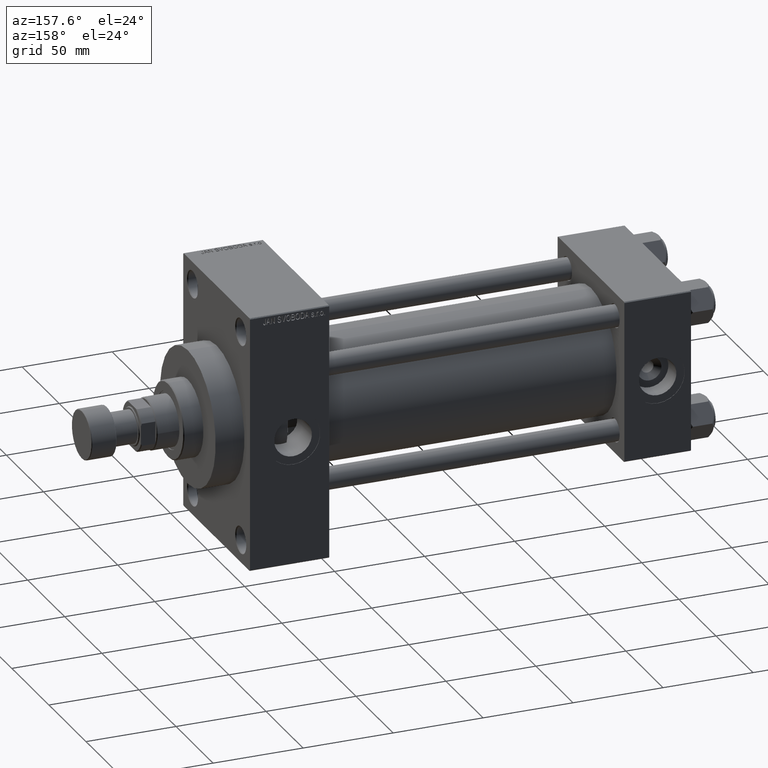
[diagram: clean part render]
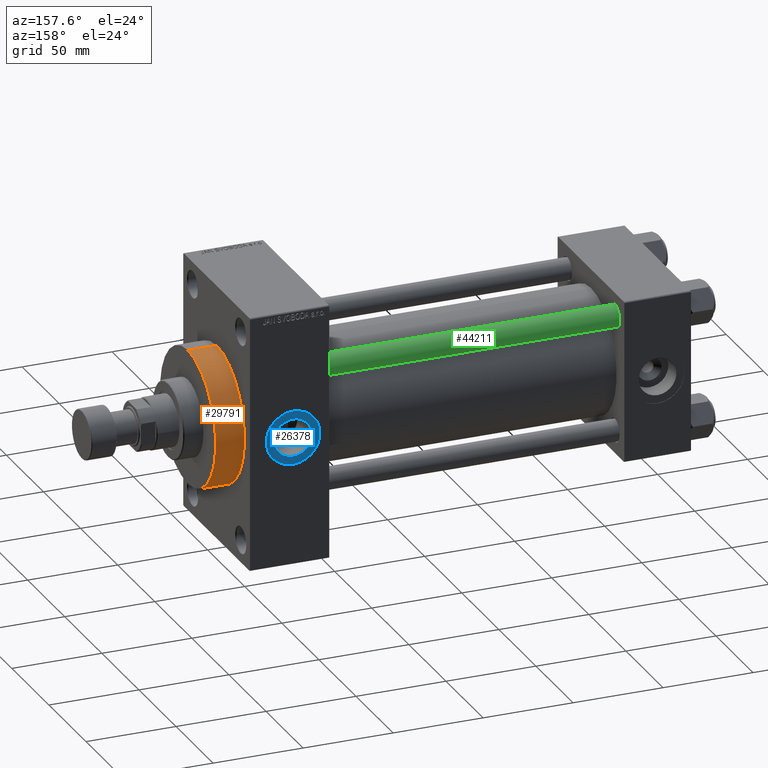
[diagram: same view with three faces highlighted in distinct colors, each labeled with its STEP entity id]
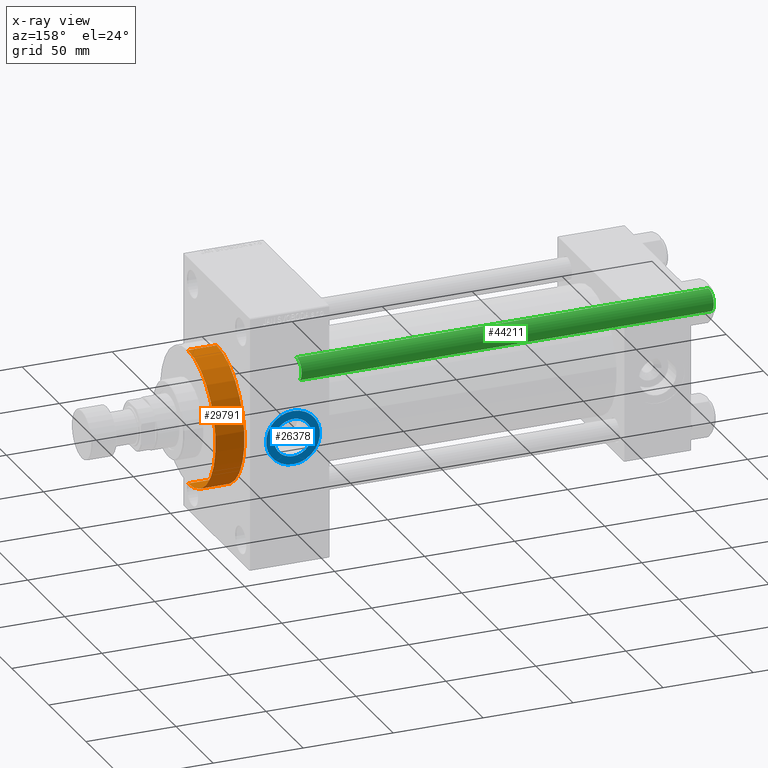
[diagram: x-ray of the same camera — body ghosted, the three highlighted faces saturated]
A machine part, auxiliary view with three faces highlighted in distinct colors.
The next image is the same camera in x-ray (body ghosted, the three faces saturated) — at least one of them is partly hidden behind the body in this view.
Their STEP definitions:

[orange] entity #29791 — the highlighted cylindrical surface (partial cylindrical patch) has radius 37.5 mm, axis along (-1, -0, -0).
#171 = CARTESIAN_POINT ( 'NONE',  ( 261.0000000000000000, 0.000000000000000000, 0.000000000000000000 ) ) ;
#3113 = AXIS2_PLACEMENT_3D ( 'NONE', #14145, #36592, #35643 ) ;
#3322 = VECTOR ( 'NONE', #26654, 1000.000000000000000 ) ;
#4026 = VERTEX_POINT ( 'NONE', #44287 ) ;
#4487 = DIRECTION ( 'NONE',  ( 0.000000000000000000, 0.000000000000000000, 1.000000000000000000 ) ) ;
#6993 = CIRCLE ( 'NONE', #34714, 37.50000000000000711 ) ;
#7919 = EDGE_CURVE ( 'NONE', #46916, #16341, #12311, .T. ) ;
#11929 = CARTESIAN_POINT ( 'NONE',  ( 261.0000000000000000, 4.592425496802575156E-15, -37.50000000000000711 ) ) ;
#12151 = CARTESIAN_POINT ( 'NONE',  ( 261.0000000000000000, 4.592425496802575156E-15, -37.50000000000000711 ) ) ;
#12311 = CIRCLE ( 'NONE', #3113, 37.50000000000000711 ) ;
#14089 = EDGE_CURVE ( 'NONE', #46916, #4026, #41834, .T. ) ;
#14145 = CARTESIAN_POINT ( 'NONE',  ( 261.0000000000000000, 0.000000000000000000, 0.000000000000000000 ) ) ;
#16341 = VERTEX_POINT ( 'NONE', #40791 ) ;
#16514 = CARTESIAN_POINT ( 'NONE',  ( 245.0000000000000000, 0.000000000000000000, 37.50000000000000711 ) ) ;
#19055 = LINE ( 'NONE', #22454, #21099 ) ;
#20376 = VERTEX_POINT ( 'NONE', #16514 ) ;
#20783 = EDGE_CURVE ( 'NONE', #16341, #20376, #19055, .T. ) ;
#21099 = VECTOR ( 'NONE', #37643, 1000.000000000000000 ) ;
#21876 = DIRECTION ( 'NONE',  ( -1.000000000000000000, -0.000000000000000000, -0.000000000000000000 ) ) ;
#22454 = CARTESIAN_POINT ( 'NONE',  ( 261.0000000000000000, 0.000000000000000000, 37.50000000000000711 ) ) ;
#24966 = EDGE_LOOP ( 'NONE', ( #41470, #33529, #42414, #27810 ) ) ;
#26654 = DIRECTION ( 'NONE',  ( -1.000000000000000000, -0.000000000000000000, -0.000000000000000000 ) ) ;
#27810 = ORIENTED_EDGE ( 'NONE', *, *, #20783, .F. ) ;
#29791 = ADVANCED_FACE ( 'NONE', ( #32982 ), #44292, .T. ) ;
#30035 = CARTESIAN_POINT ( 'NONE',  ( 245.0000000000000000, 0.000000000000000000, 0.000000000000000000 ) ) ;
#32982 = FACE_OUTER_BOUND ( 'NONE', #24966, .T. ) ;
#33529 = ORIENTED_EDGE ( 'NONE', *, *, #14089, .T. ) ;
#34714 = AXIS2_PLACEMENT_3D ( 'NONE', #30035, #44744, #43799 ) ;
#35643 = DIRECTION ( 'NONE',  ( 0.000000000000000000, 0.000000000000000000, -1.000000000000000000 ) ) ;
#36592 = DIRECTION ( 'NONE',  ( 1.000000000000000000, 0.000000000000000000, 0.000000000000000000 ) ) ;
#37643 = DIRECTION ( 'NONE',  ( -1.000000000000000000, -0.000000000000000000, -0.000000000000000000 ) ) ;
#37712 = EDGE_CURVE ( 'NONE', #4026, #20376, #6993, .T. ) ;
#39945 = AXIS2_PLACEMENT_3D ( 'NONE', #171, #21876, #4487 ) ;
#40791 = CARTESIAN_POINT ( 'NONE',  ( 261.0000000000000000, 0.000000000000000000, 37.50000000000000711 ) ) ;
#41470 = ORIENTED_EDGE ( 'NONE', *, *, #7919, .F. ) ;
#41834 = LINE ( 'NONE', #11929, #3322 ) ;
#42414 = ORIENTED_EDGE ( 'NONE', *, *, #37712, .T. ) ;
#43799 = DIRECTION ( 'NONE',  ( 0.000000000000000000, 0.000000000000000000, -1.000000000000000000 ) ) ;
#44287 = CARTESIAN_POINT ( 'NONE',  ( 245.0000000000000000, 4.592425496802575156E-15, -37.50000000000000711 ) ) ;
#44292 = CYLINDRICAL_SURFACE ( 'NONE', #39945, 37.50000000000000711 ) ;
#44744 = DIRECTION ( 'NONE',  ( 1.000000000000000000, 0.000000000000000000, 0.000000000000000000 ) ) ;
#46916 = VERTEX_POINT ( 'NONE', #12151 ) ;

[blue] entity #26378 — the highlighted planar face has unit normal (0, 1, 0).
#371 = AXIS2_PLACEMENT_3D ( 'NONE', #31600, #38830, #28690 ) ;
#1223 = DIRECTION ( 'NONE',  ( 0.000000000000000000, 1.000000000000000000, 0.000000000000000000 ) ) ;
#3537 = VERTEX_POINT ( 'NONE', #41081 ) ;
#9429 = AXIS2_PLACEMENT_3D ( 'NONE', #18508, #44310, #11257 ) ;
#11020 = AXIS2_PLACEMENT_3D ( 'NONE', #44806, #36869, #37568 ) ;
#11257 = DIRECTION ( 'NONE',  ( 0.000000000000000000, 0.000000000000000000, 1.000000000000000000 ) ) ;
#12649 = EDGE_CURVE ( 'NONE', #3537, #30368, #34100, .T. ) ;
#14279 = CARTESIAN_POINT ( 'NONE',  ( 221.0000000000000284, 44.80000000000001137, 15.00000000000002309 ) ) ;
#16277 = ORIENTED_EDGE ( 'NONE', *, *, #17792, .T. ) ;
#17792 = EDGE_CURVE ( 'NONE', #30368, #3537, #46581, .T. ) ;
#18508 = CARTESIAN_POINT ( 'NONE',  ( 221.0000000000000284, 44.80000000000001137, -2.198945251238207943E-15 ) ) ;
#21170 = CIRCLE ( 'NONE', #371, 10.47999999999998622 ) ;
#22138 = PLANE ( 'NONE',  #11020 ) ;
#22381 = FACE_BOUND ( 'NONE', #38479, .T. ) ;
#22801 = EDGE_CURVE ( 'NONE', #31782, #37859, #21170, .T. ) ;
#24269 = EDGE_LOOP ( 'NONE', ( #16277, #29508 ) ) ;
#24343 = EDGE_CURVE ( 'NONE', #37859, #31782, #45124, .T. ) ;
#25904 = CARTESIAN_POINT ( 'NONE',  ( 221.0000000000000284, 44.80000000000001137, -2.198945251238207943E-15 ) ) ;
#26378 = ADVANCED_FACE ( 'NONE', ( #22381, #41183 ), #22138, .T. ) ;
#28690 = DIRECTION ( 'NONE',  ( 0.000000000000000000, 0.000000000000000000, 1.000000000000000000 ) ) ;
#29508 = ORIENTED_EDGE ( 'NONE', *, *, #12649, .T. ) ;
#30295 = AXIS2_PLACEMENT_3D ( 'NONE', #25904, #47375, #47139 ) ;
#30368 = VERTEX_POINT ( 'NONE', #14279 ) ;
#31367 = DIRECTION ( 'NONE',  ( 0.000000000000000000, 0.000000000000000000, 1.000000000000000000 ) ) ;
#31600 = CARTESIAN_POINT ( 'NONE',  ( 221.0000000000000284, 44.80000000000000426, -2.198945251238207943E-15 ) ) ;
#31782 = VERTEX_POINT ( 'NONE', #40745 ) ;
#34100 = CIRCLE ( 'NONE', #9429, 15.00000000000002487 ) ;
#35916 = AXIS2_PLACEMENT_3D ( 'NONE', #38844, #1223, #31367 ) ;
#36295 = CARTESIAN_POINT ( 'NONE',  ( 221.0000000000000284, 44.80000000000000426, -10.47999999999998799 ) ) ;
#36869 = DIRECTION ( 'NONE',  ( 0.000000000000000000, 1.000000000000000000, 0.000000000000000000 ) ) ;
#37568 = DIRECTION ( 'NONE',  ( 0.000000000000000000, -0.000000000000000000, 1.000000000000000000 ) ) ;
#37859 = VERTEX_POINT ( 'NONE', #36295 ) ;
#38479 = EDGE_LOOP ( 'NONE', ( #39021, #41974 ) ) ;
#38830 = DIRECTION ( 'NONE',  ( 0.000000000000000000, 1.000000000000000000, 0.000000000000000000 ) ) ;
#38844 = CARTESIAN_POINT ( 'NONE',  ( 221.0000000000000284, 44.80000000000000426, -2.198945251238207943E-15 ) ) ;
#39021 = ORIENTED_EDGE ( 'NONE', *, *, #22801, .F. ) ;
#40745 = CARTESIAN_POINT ( 'NONE',  ( 221.0000000000000284, 44.80000000000000426, 10.47999999999998444 ) ) ;
#41081 = CARTESIAN_POINT ( 'NONE',  ( 221.0000000000000284, 44.80000000000001137, -15.00000000000002665 ) ) ;
#41183 = FACE_OUTER_BOUND ( 'NONE', #24269, .T. ) ;
#41974 = ORIENTED_EDGE ( 'NONE', *, *, #24343, .F. ) ;
#44310 = DIRECTION ( 'NONE',  ( 0.000000000000000000, 1.000000000000000000, 0.000000000000000000 ) ) ;
#44806 = CARTESIAN_POINT ( 'NONE',  ( 221.0000000000000284, 44.80000000000001137, -2.198945251238207943E-15 ) ) ;
#45124 = CIRCLE ( 'NONE', #35916, 10.47999999999998622 ) ;
#46581 = CIRCLE ( 'NONE', #30295, 15.00000000000002487 ) ;
#47139 = DIRECTION ( 'NONE',  ( 0.000000000000000000, 0.000000000000000000, 1.000000000000000000 ) ) ;
#47375 = DIRECTION ( 'NONE',  ( 0.000000000000000000, 1.000000000000000000, 0.000000000000000000 ) ) ;

[green] entity #44211 — the highlighted cylindrical surface (edge-blend (fillet) strip) has radius 6 mm, axis along (-1, -0, 0).
#169 = VERTEX_POINT ( 'NONE', #17254 ) ;
#385 = DIRECTION ( 'NONE',  ( -0.000000000000000000, -0.000000000000000000, -1.000000000000000000 ) ) ;
#3315 = EDGE_CURVE ( 'NONE', #169, #28275, #32250, .T. ) ;
#7644 = CARTESIAN_POINT ( 'NONE',  ( -6.000000000000000888, 0.000000000000000000, 229.5000000000000284 ) ) ;
#9070 = DIRECTION ( 'NONE',  ( 0.000000000000000000, 0.000000000000000000, -1.000000000000000000 ) ) ;
#10242 = VERTEX_POINT ( 'NONE', #7644 ) ;
#10280 = CARTESIAN_POINT ( 'NONE',  ( 6.000000000000000888, 7.347880794884120722E-16, 230.0000000000000000 ) ) ;
#10600 = ORIENTED_EDGE ( 'NONE', *, *, #3315, .T. ) ;
#12050 = CARTESIAN_POINT ( 'NONE',  ( 6.000000000000000888, 7.347880794884120722E-16, 0.4999999999999726885 ) ) ;
#12178 = CARTESIAN_POINT ( 'NONE',  ( 0.000000000000000000, 0.000000000000000000, 230.0000000000000000 ) ) ;
#13566 = DIRECTION ( 'NONE',  ( -0.000000000000000000, -0.000000000000000000, 1.000000000000000000 ) ) ;
#13725 = VECTOR ( 'NONE', #18686, 1000.000000000000000 ) ;
#17254 = CARTESIAN_POINT ( 'NONE',  ( 6.000000000000000888, 7.347880794884120722E-16, 229.5000000000000284 ) ) ;
#17452 = CIRCLE ( 'NONE', #35951, 6.000000000000000888 ) ;
#18686 = DIRECTION ( 'NONE',  ( -0.000000000000000000, -0.000000000000000000, -1.000000000000000000 ) ) ;
#18943 = CYLINDRICAL_SURFACE ( 'NONE', #26783, 6.000000000000000888 ) ;
#22908 = EDGE_LOOP ( 'NONE', ( #28686, #10600, #40749, #43465 ) ) ;
#25009 = DIRECTION ( 'NONE',  ( -0.000000000000000000, -0.000000000000000000, -1.000000000000000000 ) ) ;
#25296 = EDGE_CURVE ( 'NONE', #28275, #28525, #17452, .T. ) ;
#26783 = AXIS2_PLACEMENT_3D ( 'NONE', #12178, #385, #33674 ) ;
#27505 = AXIS2_PLACEMENT_3D ( 'NONE', #41178, #9070, #38047 ) ;
#27823 = CARTESIAN_POINT ( 'NONE',  ( 0.000000000000000000, 0.000000000000000000, 0.4999999999999726885 ) ) ;
#28275 = VERTEX_POINT ( 'NONE', #12050 ) ;
#28525 = VERTEX_POINT ( 'NONE', #45049 ) ;
#28686 = ORIENTED_EDGE ( 'NONE', *, *, #43601, .T. ) ;
#32250 = LINE ( 'NONE', #10280, #36959 ) ;
#33674 = DIRECTION ( 'NONE',  ( -1.000000000000000000, 0.000000000000000000, 0.000000000000000000 ) ) ;
#35951 = AXIS2_PLACEMENT_3D ( 'NONE', #27823, #13566, #39390 ) ;
#36959 = VECTOR ( 'NONE', #25009, 1000.000000000000000 ) ;
#38047 = DIRECTION ( 'NONE',  ( 1.000000000000000000, 0.000000000000000000, 0.000000000000000000 ) ) ;
#39390 = DIRECTION ( 'NONE',  ( 1.000000000000000000, 0.000000000000000000, 0.000000000000000000 ) ) ;
#40622 = CIRCLE ( 'NONE', #27505, 6.000000000000000888 ) ;
#40749 = ORIENTED_EDGE ( 'NONE', *, *, #25296, .T. ) ;
#41114 = CARTESIAN_POINT ( 'NONE',  ( -6.000000000000000888, 0.000000000000000000, 230.0000000000000000 ) ) ;
#41178 = CARTESIAN_POINT ( 'NONE',  ( 0.000000000000000000, 0.000000000000000000, 229.5000000000000284 ) ) ;
#42613 = EDGE_CURVE ( 'NONE', #10242, #28525, #44259, .T. ) ;
#43465 = ORIENTED_EDGE ( 'NONE', *, *, #42613, .F. ) ;
#43601 = EDGE_CURVE ( 'NONE', #10242, #169, #40622, .T. ) ;
#44211 = ADVANCED_FACE ( 'NONE', ( #45004 ), #18943, .T. ) ;
#44259 = LINE ( 'NONE', #41114, #13725 ) ;
#45004 = FACE_OUTER_BOUND ( 'NONE', #22908, .T. ) ;
#45049 = CARTESIAN_POINT ( 'NONE',  ( -6.000000000000000888, 0.000000000000000000, 0.4999999999999726885 ) ) ;